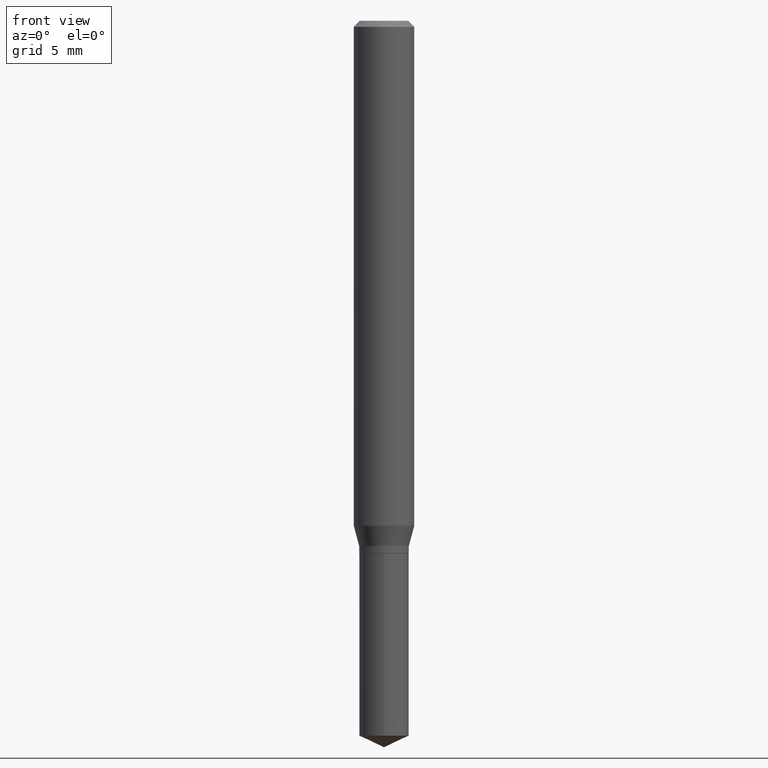
[diagram: clean part render]
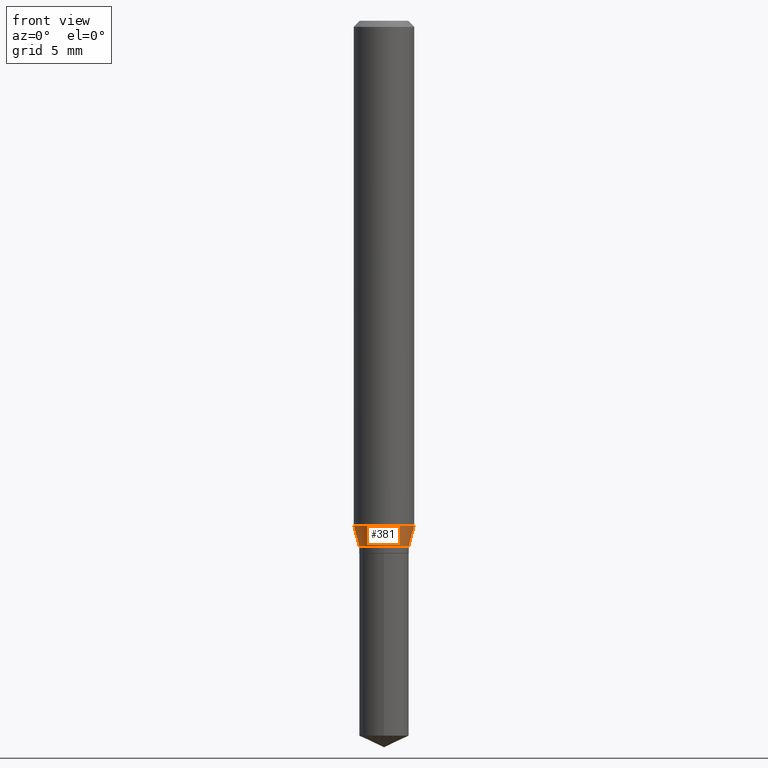
[diagram: same view with one face highlighted and labeled with its STEP entity id]
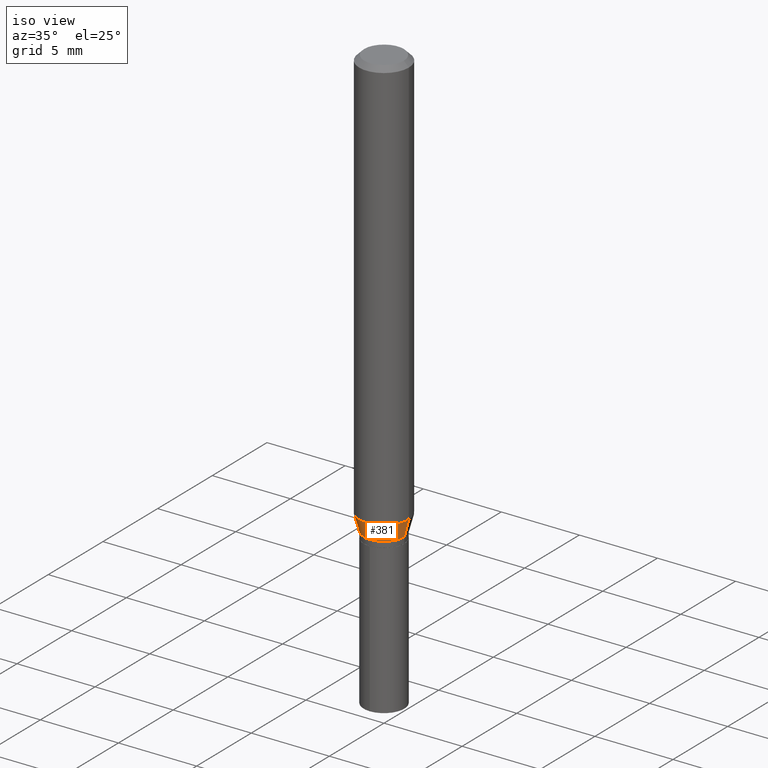
[diagram: same view with one face highlighted and labeled with its STEP entity id]
A machine part, front view. The second image highlights one B-rep face of the part: STEP entity #381.
A second angle (iso view) of the same face is appended — the face is thin or edge-on in the first view.
In plain terms, the highlighted conical surface has half-angle 15 deg.
Its self-contained STEP definition (entity closure, byte-faithful):
#5 = VERTEX_POINT ( 'NONE', #465 ) ;
#38 = AXIS2_PLACEMENT_3D ( 'NONE', #107, #338, #380 ) ;
#39 = DIRECTION ( 'NONE',  ( -2.445468806185136597E-29, 3.491481338843145583E-15, 1.000000000000000000 ) ) ;
#44 = FACE_OUTER_BOUND ( 'NONE', #90, .T. ) ;
#52 = VECTOR ( 'NONE', #133, 39.37007874015748854 ) ;
#59 = VERTEX_POINT ( 'NONE', #246 ) ;
#79 = DIRECTION ( 'NONE',  ( 1.000000000000000000, -6.982962677686263555E-15, 0.000000000000000000 ) ) ;
#81 = DIRECTION ( 'NONE',  ( 1.000000000000000000, -6.982962677686263555E-15, 0.000000000000000000 ) ) ;
#89 = AXIS2_PLACEMENT_3D ( 'NONE', #334, #120, #79 ) ;
#90 = EDGE_LOOP ( 'NONE', ( #463, #322, #426, #271 ) ) ;
#105 = VECTOR ( 'NONE', #183, 39.37007874015748854 ) ;
#107 = CARTESIAN_POINT ( 'NONE',  ( 2.549224730875411366E-29, -3.639617301131549436E-15, -1.042427825874471470 ) ) ;
#120 = DIRECTION ( 'NONE',  ( -2.445468806185136597E-29, 3.491481338843145583E-15, 1.000000000000000000 ) ) ;
#133 = DIRECTION ( 'NONE',  ( -0.2588190451025212391, 5.211531920934549464E-15, 0.9659258262890679791 ) ) ;
#144 = CARTESIAN_POINT ( 'NONE',  ( 0.05120000000000000939, -4.144388349206813555E-15, -1.084600000000000231 ) ) ;
#183 = DIRECTION ( 'NONE',  ( 0.2588190451025212391, 1.565188264969622362E-15, 0.9659258262890679791 ) ) ;
#187 = EDGE_CURVE ( 'NONE', #301, #5, #276, .T. ) ;
#194 = CIRCLE ( 'NONE', #89, 0.05120000000000000939 ) ;
#195 = VERTEX_POINT ( 'NONE', #482 ) ;
#246 = CARTESIAN_POINT ( 'NONE',  ( 0.06250000000000012490, -4.076052468486941894E-15, -1.042427825874471470 ) ) ;
#269 = AXIS2_PLACEMENT_3D ( 'NONE', #486, #39, #81 ) ;
#271 = ORIENTED_EDGE ( 'NONE', *, *, #431, .F. ) ;
#276 = LINE ( 'NONE', #324, #52 ) ;
#301 = VERTEX_POINT ( 'NONE', #447 ) ;
#322 = ORIENTED_EDGE ( 'NONE', *, *, #473, .T. ) ;
#324 = CARTESIAN_POINT ( 'NONE',  ( -0.05120000000000000939, -3.423062779400105148E-15, -1.084600000000000231 ) ) ;
#334 = CARTESIAN_POINT ( 'NONE',  ( 2.652355467188399594E-29, -3.786860660109276214E-15, -1.084600000000000231 ) ) ;
#338 = DIRECTION ( 'NONE',  ( -2.445468806185136597E-29, 3.491481338843145583E-15, 1.000000000000000000 ) ) ;
#349 = LINE ( 'NONE', #144, #105 ) ;
#358 = CONICAL_SURFACE ( 'NONE', #269, 0.05120000000000000939, 0.2617993877991499629 ) ;
#380 = DIRECTION ( 'NONE',  ( 1.000000000000000000, -6.982962677686264344E-15, 0.000000000000000000 ) ) ;
#381 = ADVANCED_FACE ( 'NONE', ( #44 ), #358, .T. ) ;
#421 = EDGE_CURVE ( 'NONE', #195, #59, #349, .T. ) ;
#426 = ORIENTED_EDGE ( 'NONE', *, *, #421, .T. ) ;
#431 = EDGE_CURVE ( 'NONE', #5, #59, #490, .T. ) ;
#447 = CARTESIAN_POINT ( 'NONE',  ( -0.05120000000000000939, -3.449074315374485945E-15, -1.084600000000000231 ) ) ;
#463 = ORIENTED_EDGE ( 'NONE', *, *, #187, .F. ) ;
#465 = CARTESIAN_POINT ( 'NONE',  ( -0.06250000000000012490, -3.195528091281486031E-15, -1.042427825874471470 ) ) ;
#473 = EDGE_CURVE ( 'NONE', #301, #195, #194, .T. ) ;
#482 = CARTESIAN_POINT ( 'NONE',  ( 0.05120000000000000939, -4.144388349206813555E-15, -1.084600000000000231 ) ) ;
#486 = CARTESIAN_POINT ( 'NONE',  ( 2.652355467188399594E-29, -3.786860660109276214E-15, -1.084600000000000231 ) ) ;
#490 = CIRCLE ( 'NONE', #38, 0.06250000000000012490 ) ;